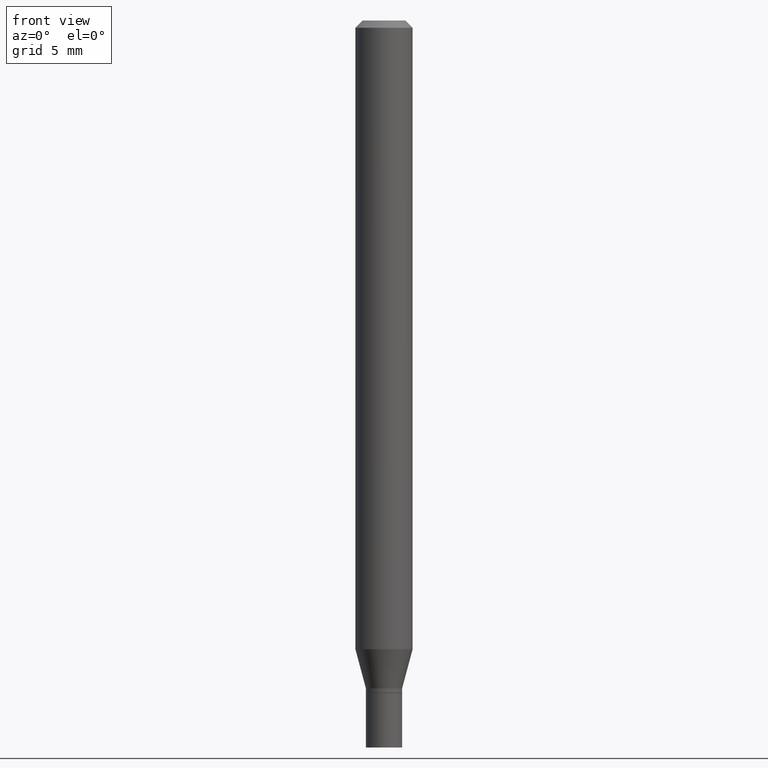
[diagram: clean part render]
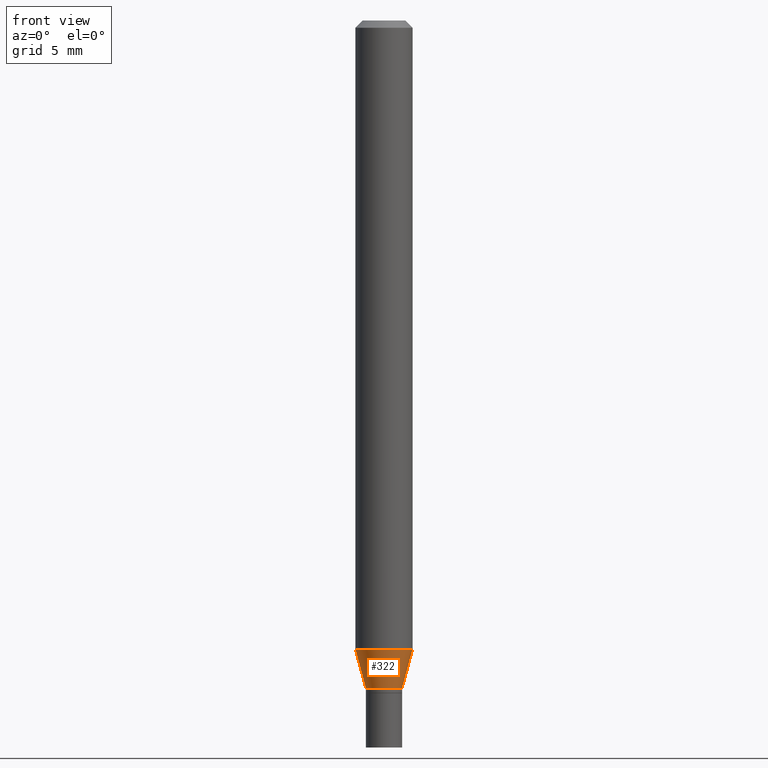
[diagram: same view with one face highlighted and labeled with its STEP entity id]
A machine part, front view. The second image highlights one B-rep face of the part: STEP entity #322.
In plain terms, the highlighted conical surface has half-angle 15 deg.
Its self-contained STEP definition (entity closure, byte-faithful):
#2 = EDGE_LOOP ( 'NONE', ( #115, #268, #117, #267 ) ) ;
#31 = CARTESIAN_POINT ( 'NONE',  ( 3.369856014923118508E-29, -4.811261284925855529E-15, -1.378000000000000114 ) ) ;
#34 = EDGE_CURVE ( 'NONE', #289, #409, #54, .T. ) ;
#54 = LINE ( 'NONE', #425, #292 ) ;
#69 = CONICAL_SURFACE ( 'NONE', #237, 0.03739999999999964186, 0.2617993877991505736 ) ;
#88 = EDGE_CURVE ( 'NONE', #289, #230, #327, .T. ) ;
#90 = DIRECTION ( 'NONE',  ( -2.445468806185136597E-29, 3.491481338843145583E-15, 1.000000000000000000 ) ) ;
#115 = ORIENTED_EDGE ( 'NONE', *, *, #34, .F. ) ;
#117 = ORIENTED_EDGE ( 'NONE', *, *, #231, .T. ) ;
#129 = CARTESIAN_POINT ( 'NONE',  ( 3.369856014923118508E-29, -4.811261284925855529E-15, -1.378000000000000114 ) ) ;
#133 = CARTESIAN_POINT ( 'NONE',  ( 0.03739999999999964186, -5.072424089071318773E-15, -1.378000000000000114 ) ) ;
#157 = AXIS2_PLACEMENT_3D ( 'NONE', #433, #449, #369 ) ;
#163 = CARTESIAN_POINT ( 'NONE',  ( 0.05904999999999999832, -4.941497379550503120E-15, -1.297201100016132980 ) ) ;
#167 = DIRECTION ( 'NONE',  ( 1.000000000000000000, -6.982962677686264344E-15, 0.000000000000000000 ) ) ;
#183 = VECTOR ( 'NONE', #248, 39.37007874015748143 ) ;
#209 = DIRECTION ( 'NONE',  ( 1.000000000000000000, -6.982962677686264344E-15, 0.000000000000000000 ) ) ;
#230 = VERTEX_POINT ( 'NONE', #422 ) ;
#231 = EDGE_CURVE ( 'NONE', #230, #400, #348, .T. ) ;
#237 = AXIS2_PLACEMENT_3D ( 'NONE', #129, #429, #209 ) ;
#248 = DIRECTION ( 'NONE',  ( 0.2588190451025218497, 1.565188264969618221E-15, 0.9659258262890679791 ) ) ;
#267 = ORIENTED_EDGE ( 'NONE', *, *, #382, .F. ) ;
#268 = ORIENTED_EDGE ( 'NONE', *, *, #88, .T. ) ;
#275 = DIRECTION ( 'NONE',  ( -0.2588190451025218497, 5.211531920934553408E-15, 0.9659258262890679791 ) ) ;
#289 = VERTEX_POINT ( 'NONE', #311 ) ;
#292 = VECTOR ( 'NONE', #275, 39.37007874015748143 ) ;
#311 = CARTESIAN_POINT ( 'NONE',  ( -0.03739999999999964186, -4.327548124859185395E-15, -1.378000000000000114 ) ) ;
#312 = AXIS2_PLACEMENT_3D ( 'NONE', #31, #90, #167 ) ;
#322 = ADVANCED_FACE ( 'NONE', ( #463 ), #69, .T. ) ;
#327 = CIRCLE ( 'NONE', #312, 0.03739999999999964186 ) ;
#348 = LINE ( 'NONE', #133, #183 ) ;
#369 = DIRECTION ( 'NONE',  ( 1.000000000000000000, -6.982962677686273021E-15, 0.000000000000000000 ) ) ;
#382 = EDGE_CURVE ( 'NONE', #409, #400, #417, .T. ) ;
#386 = CARTESIAN_POINT ( 'NONE',  ( -0.05904999999999999832, -4.109577947966790285E-15, -1.297201100016132980 ) ) ;
#400 = VERTEX_POINT ( 'NONE', #163 ) ;
#409 = VERTEX_POINT ( 'NONE', #386 ) ;
#417 = CIRCLE ( 'NONE', #157, 0.05904999999999999832 ) ;
#422 = CARTESIAN_POINT ( 'NONE',  ( 0.03739999999999964186, -5.072424089071318773E-15, -1.378000000000000114 ) ) ;
#425 = CARTESIAN_POINT ( 'NONE',  ( -0.03739999999999964186, -4.545518301751580505E-15, -1.378000000000000114 ) ) ;
#429 = DIRECTION ( 'NONE',  ( -2.445468806185136597E-29, 3.491481338843145583E-15, 1.000000000000000000 ) ) ;
#433 = CARTESIAN_POINT ( 'NONE',  ( 3.172264825438498801E-29, -4.529153433433129778E-15, -1.297201100016132980 ) ) ;
#449 = DIRECTION ( 'NONE',  ( -2.445468806185136597E-29, 3.491481338843145583E-15, 1.000000000000000000 ) ) ;
#463 = FACE_OUTER_BOUND ( 'NONE', #2, .T. ) ;